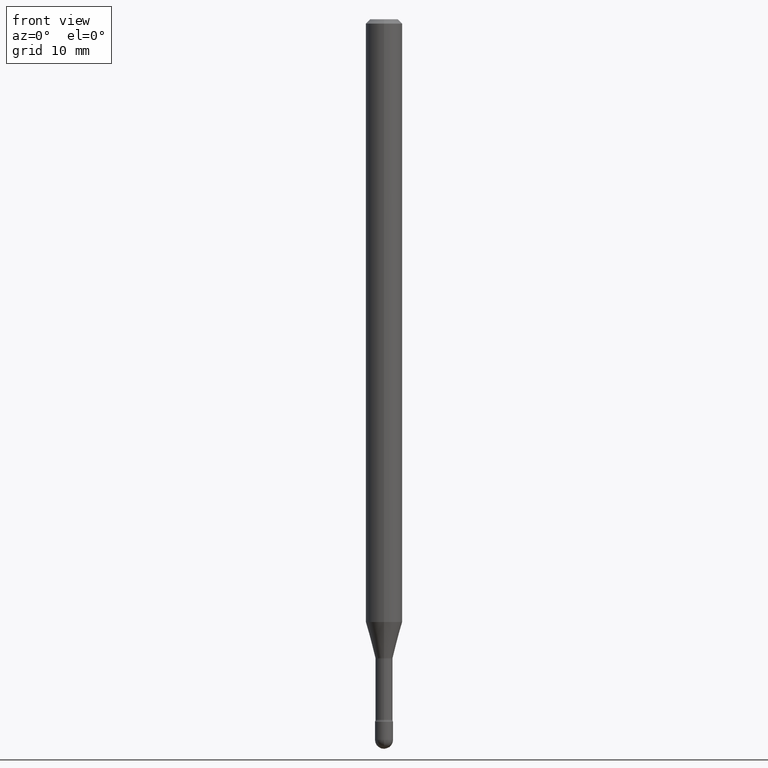
[diagram: clean part render]
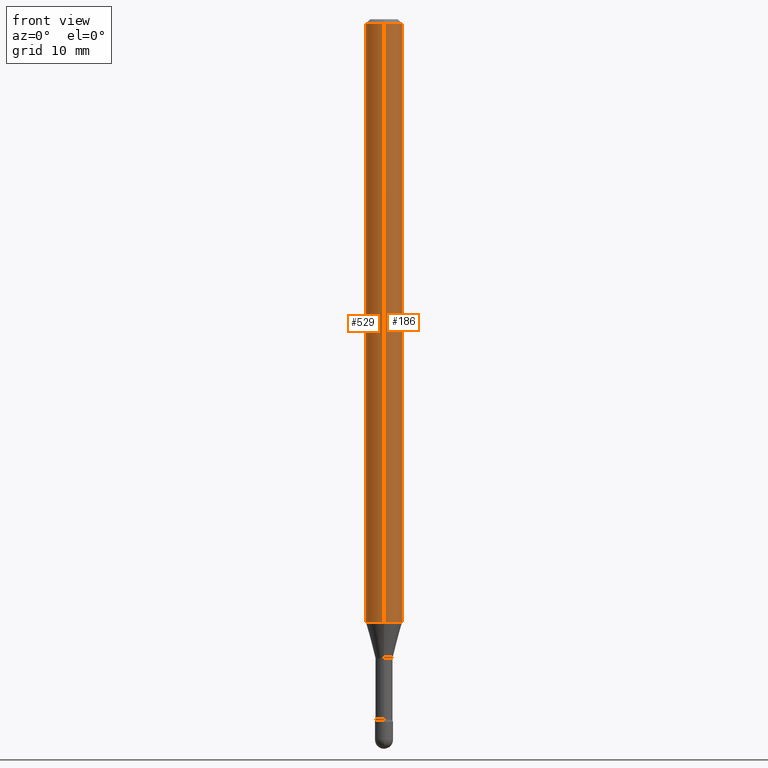
[diagram: same view with one multi-face feature highlighted, each face labeled with its STEP entity id]
A machine part, front view. The highlighted faces form ONE feature: a constant-radius fillet chain: 2 tangent blend faces with common blend radius 1.5875 mm. The faces share edges in the B-rep.
Their STEP definitions:
[1] entity #186 (Cylinder):
#15 = VECTOR ( 'NONE', #407, 39.37007874015748143 ) ;
#28 = DIRECTION ( 'NONE',  ( -2.445457861862203003E-29, 3.491497011736498785E-15, 1.000000000000000000 ) ) ;
#42 = EDGE_CURVE ( 'NONE', #441, #292, #340, .T. ) ;
#48 = EDGE_CURVE ( 'NONE', #72, #441, #108, .T. ) ;
#51 = VECTOR ( 'NONE', #28, 39.37007874015748143 ) ;
#55 = LINE ( 'NONE', #106, #15 ) ;
#62 = DIRECTION ( 'NONE',  ( -2.445457861862202723E-29, 3.491497011736498785E-15, 1.000000000000000000 ) ) ;
#63 = EDGE_LOOP ( 'NONE', ( #521, #506, #102, #80 ) ) ;
#72 = VERTEX_POINT ( 'NONE', #187 ) ;
#80 = ORIENTED_EDGE ( 'NONE', *, *, #48, .F. ) ;
#102 = ORIENTED_EDGE ( 'NONE', *, *, #42, .F. ) ;
#106 = CARTESIAN_POINT ( 'NONE',  ( 4.440892098500625669E-16, 0.06250000000000000000, 2.598548356577148892E-16 ) ) ;
#108 = LINE ( 'NONE', #367, #51 ) ;
#133 = CARTESIAN_POINT ( 'NONE',  ( -4.364351673553912750E-16, -0.06250000000000005551, -0.01499999999999986587 ) ) ;
#182 = CARTESIAN_POINT ( 'NONE',  ( -1.169113584055446105E-44, 1.669184350826100908E-30, 4.780733988912460139E-16 ) ) ;
#186 = ADVANCED_FACE ( 'NONE', ( #370 ), #406, .T. ) ;
#187 = CARTESIAN_POINT ( 'NONE',  ( -4.364351673553412809E-16, -0.06250000000000724421, -2.065536105567578051 ) ) ;
#220 = CARTESIAN_POINT ( 'NONE',  ( 5.051181508320471471E-29, -7.211813140223045848E-15, -2.065536105567578051 ) ) ;
#245 = CARTESIAN_POINT ( 'NONE',  ( 3.668186792793324614E-31, -5.237245517604777982E-17, -0.01500000000000008271 ) ) ;
#268 = DIRECTION ( 'NONE',  ( -6.982962677686265922E-15, -1.000000000000000000, 4.370956789862821150E-15 ) ) ;
#292 = VERTEX_POINT ( 'NONE', #440 ) ;
#299 = AXIS2_PLACEMENT_3D ( 'NONE', #182, #62, #465 ) ;
#306 = AXIS2_PLACEMENT_3D ( 'NONE', #220, #355, #268 ) ;
#340 = CIRCLE ( 'NONE', #450, 0.06250000000000000000 ) ;
#341 = CIRCLE ( 'NONE', #306, 0.06250000000000000000 ) ;
#355 = DIRECTION ( 'NONE',  ( -2.445457861862202723E-29, 3.491497011736498785E-15, 1.000000000000000000 ) ) ;
#367 = CARTESIAN_POINT ( 'NONE',  ( -4.364351673553916201E-16, -0.06250000000000000000, 6.962919621247772866E-16 ) ) ;
#370 = FACE_OUTER_BOUND ( 'NONE', #63, .T. ) ;
#406 = CYLINDRICAL_SURFACE ( 'NONE', #299, 0.06250000000000000000 ) ;
#407 = DIRECTION ( 'NONE',  ( -2.445457861862203003E-29, 3.491497011736498785E-15, 1.000000000000000000 ) ) ;
#423 = EDGE_CURVE ( 'NONE', #558, #292, #55, .T. ) ;
#430 = EDGE_CURVE ( 'NONE', #72, #558, #341, .T. ) ;
#440 = CARTESIAN_POINT ( 'NONE',  ( 4.440892098501133991E-16, 0.06249999999999993755, -0.01500000000000030129 ) ) ;
#441 = VERTEX_POINT ( 'NONE', #133 ) ;
#450 = AXIS2_PLACEMENT_3D ( 'NONE', #245, #471, #502 ) ;
#465 = DIRECTION ( 'NONE',  ( -6.982962677686265922E-15, -1.000000000000000000, 3.491497011736498785E-15 ) ) ;
#471 = DIRECTION ( 'NONE',  ( -2.445457861862202723E-29, 3.491497011736498785E-15, 1.000000000000000000 ) ) ;
#488 = CARTESIAN_POINT ( 'NONE',  ( 4.440892098501129061E-16, 0.06249999999999276967, -2.065536105567578495 ) ) ;
#502 = DIRECTION ( 'NONE',  ( -6.982962677686265922E-15, -1.000000000000000000, 3.483106191921935554E-15 ) ) ;
#506 = ORIENTED_EDGE ( 'NONE', *, *, #423, .T. ) ;
#521 = ORIENTED_EDGE ( 'NONE', *, *, #430, .T. ) ;
#558 = VERTEX_POINT ( 'NONE', #488 ) ;
[2] entity #529 (Cylinder):
#15 = VECTOR ( 'NONE', #407, 39.37007874015748143 ) ;
#28 = DIRECTION ( 'NONE',  ( -2.445457861862203003E-29, 3.491497011736498785E-15, 1.000000000000000000 ) ) ;
#48 = EDGE_CURVE ( 'NONE', #72, #441, #108, .T. ) ;
#51 = VECTOR ( 'NONE', #28, 39.37007874015748143 ) ;
#55 = LINE ( 'NONE', #106, #15 ) ;
#66 = CIRCLE ( 'NONE', #139, 0.06250000000000000000 ) ;
#72 = VERTEX_POINT ( 'NONE', #187 ) ;
#85 = CYLINDRICAL_SURFACE ( 'NONE', #390, 0.06250000000000000000 ) ;
#104 = ORIENTED_EDGE ( 'NONE', *, *, #423, .F. ) ;
#106 = CARTESIAN_POINT ( 'NONE',  ( 4.440892098500625669E-16, 0.06250000000000000000, 2.598548356577148892E-16 ) ) ;
#108 = LINE ( 'NONE', #367, #51 ) ;
#126 = AXIS2_PLACEMENT_3D ( 'NONE', #225, #178, #230 ) ;
#129 = FACE_OUTER_BOUND ( 'NONE', #470, .T. ) ;
#133 = CARTESIAN_POINT ( 'NONE',  ( -4.364351673553912750E-16, -0.06250000000000005551, -0.01499999999999986587 ) ) ;
#139 = AXIS2_PLACEMENT_3D ( 'NONE', #226, #351, #484 ) ;
#174 = DIRECTION ( 'NONE',  ( -2.445457861862202723E-29, 3.491497011736498785E-15, 1.000000000000000000 ) ) ;
#178 = DIRECTION ( 'NONE',  ( -2.445457861862202723E-29, 3.491497011736498785E-15, 1.000000000000000000 ) ) ;
#187 = CARTESIAN_POINT ( 'NONE',  ( -4.364351673553412809E-16, -0.06250000000000724421, -2.065536105567578051 ) ) ;
#209 = ORIENTED_EDGE ( 'NONE', *, *, #533, .T. ) ;
#223 = DIRECTION ( 'NONE',  ( -6.982962677686265922E-15, -1.000000000000000000, 3.491497011736498785E-15 ) ) ;
#225 = CARTESIAN_POINT ( 'NONE',  ( 3.668186792793324614E-31, -5.237245517604777982E-17, -0.01500000000000008271 ) ) ;
#226 = CARTESIAN_POINT ( 'NONE',  ( 5.051181508320471471E-29, -7.211813140223045848E-15, -2.065536105567578051 ) ) ;
#229 = ORIENTED_EDGE ( 'NONE', *, *, #48, .T. ) ;
#230 = DIRECTION ( 'NONE',  ( -6.982962677686265922E-15, -1.000000000000000000, 3.483106191921935554E-15 ) ) ;
#253 = EDGE_CURVE ( 'NONE', #292, #441, #408, .T. ) ;
#292 = VERTEX_POINT ( 'NONE', #440 ) ;
#351 = DIRECTION ( 'NONE',  ( -2.445457861862202723E-29, 3.491497011736498785E-15, 1.000000000000000000 ) ) ;
#367 = CARTESIAN_POINT ( 'NONE',  ( -4.364351673553916201E-16, -0.06250000000000000000, 6.962919621247772866E-16 ) ) ;
#390 = AXIS2_PLACEMENT_3D ( 'NONE', #528, #174, #223 ) ;
#407 = DIRECTION ( 'NONE',  ( -2.445457861862203003E-29, 3.491497011736498785E-15, 1.000000000000000000 ) ) ;
#408 = CIRCLE ( 'NONE', #126, 0.06250000000000000000 ) ;
#423 = EDGE_CURVE ( 'NONE', #558, #292, #55, .T. ) ;
#440 = CARTESIAN_POINT ( 'NONE',  ( 4.440892098501133991E-16, 0.06249999999999993755, -0.01500000000000030129 ) ) ;
#441 = VERTEX_POINT ( 'NONE', #133 ) ;
#470 = EDGE_LOOP ( 'NONE', ( #104, #209, #229, #492 ) ) ;
#484 = DIRECTION ( 'NONE',  ( -6.982962677686265922E-15, -1.000000000000000000, 4.370956789862821150E-15 ) ) ;
#488 = CARTESIAN_POINT ( 'NONE',  ( 4.440892098501129061E-16, 0.06249999999999276967, -2.065536105567578495 ) ) ;
#492 = ORIENTED_EDGE ( 'NONE', *, *, #253, .F. ) ;
#528 = CARTESIAN_POINT ( 'NONE',  ( -1.169113584055446105E-44, 1.669184350826100908E-30, 4.780733988912460139E-16 ) ) ;
#529 = ADVANCED_FACE ( 'NONE', ( #129 ), #85, .T. ) ;
#533 = EDGE_CURVE ( 'NONE', #558, #72, #66, .T. ) ;
#558 = VERTEX_POINT ( 'NONE', #488 ) ;